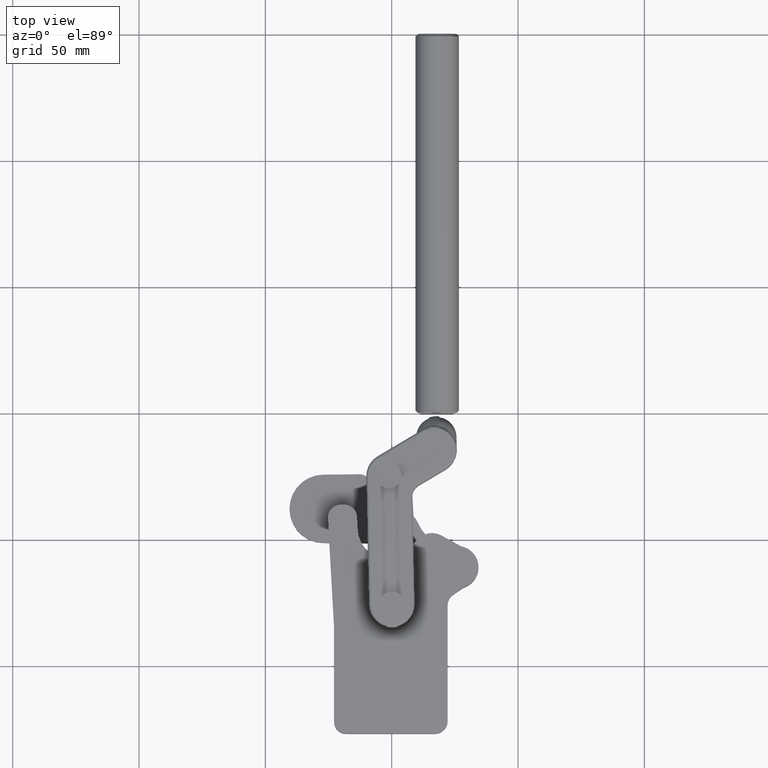
[diagram: clean part render]
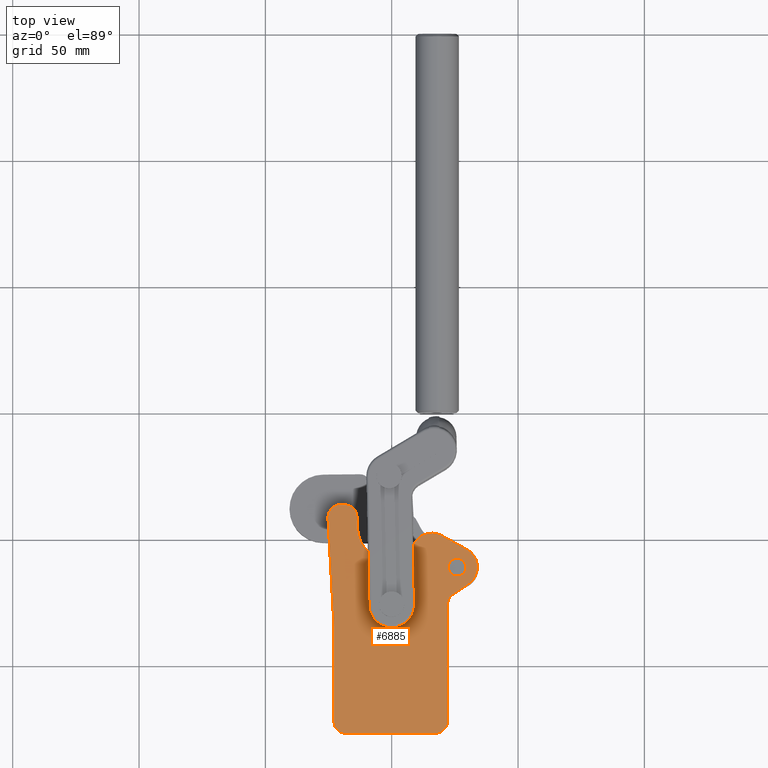
[diagram: same view with one face highlighted and labeled with its STEP entity id]
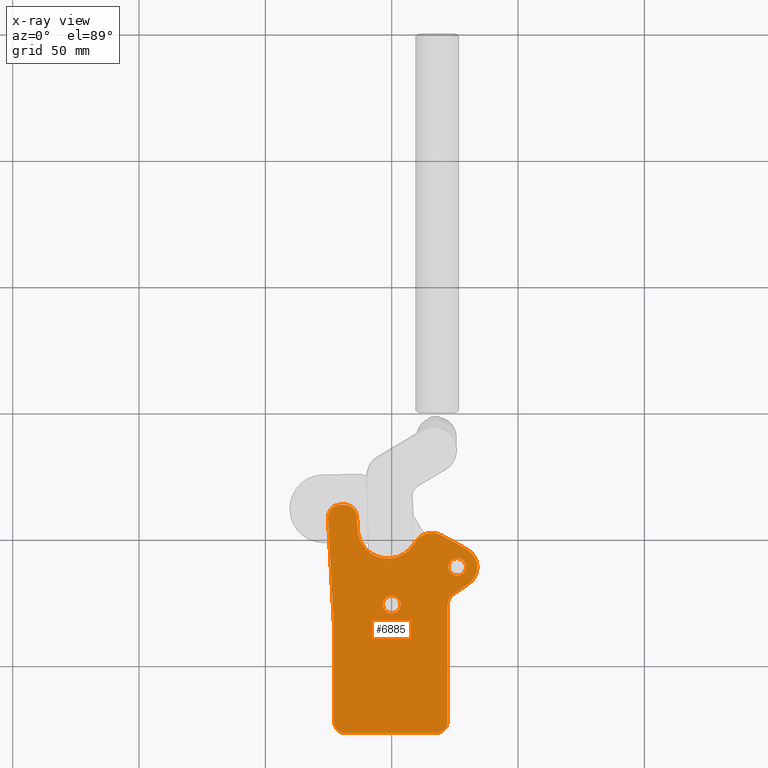
[diagram: x-ray of the same camera — body ghosted, the highlighted face saturated]
A machine part, top view. The second image highlights one B-rep face of the part: STEP entity #6885.
The next image is the same camera in x-ray: the body ghosted, the highlighted face saturated — about 0% of this face is hidden behind the body in this view.
In plain terms, the highlighted planar face has unit normal (0, 0, 1).
Its self-contained STEP definition (entity closure, byte-faithful):
#79 = EDGE_CURVE ( 'NONE', #3396, #1000, #2677, .T. ) ;
#95 = EDGE_CURVE ( 'NONE', #9282, #4445, #7255, .T. ) ;
#152 = ORIENTED_EDGE ( 'NONE', *, *, #8721, .T. ) ;
#173 = ORIENTED_EDGE ( 'NONE', *, *, #5014, .T. ) ;
#274 = VECTOR ( 'NONE', #10805, 1000.000000000000200 ) ;
#325 = AXIS2_PLACEMENT_3D ( 'NONE', #2663, #9889, #579 ) ;
#460 = CARTESIAN_POINT ( 'NONE',  ( 29.38500000000001600, 65.90000000000006300, 8.999999999999998200 ) ) ;
#516 = VECTOR ( 'NONE', #5171, 1000.000000000000200 ) ;
#579 = DIRECTION ( 'NONE',  ( 1.000000000000000000, 0.0000000000000000000, 0.0000000000000000000 ) ) ;
#592 = AXIS2_PLACEMENT_3D ( 'NONE', #6199, #6190, #6175 ) ;
#603 = CARTESIAN_POINT ( 'NONE',  ( -13.49999999999998900, 81.26000000000003400, 9.000000000000000000 ) ) ;
#710 = AXIS2_PLACEMENT_3D ( 'NONE', #8775, #6600, #3743 ) ;
#713 = CARTESIAN_POINT ( 'NONE',  ( -20.23095044539636300, 90.60000000000003700, 9.000000000000000000 ) ) ;
#833 = EDGE_LOOP ( 'NONE', ( #2223, #2423, #173, #6231, #10468, #5021, #4016, #2242, #8563, #9367, #9021, #8835, #4456, #152, #3994, #10645, #5891, #9943 ) ) ;
#959 = VERTEX_POINT ( 'NONE', #460 ) ;
#1000 = VERTEX_POINT ( 'NONE', #6686 ) ;
#1018 = AXIS2_PLACEMENT_3D ( 'NONE', #4094, #4110, #6214 ) ;
#1032 = VERTEX_POINT ( 'NONE', #10092 ) ;
#1179 = VECTOR ( 'NONE', #1262, 1000.000000000000100 ) ;
#1227 = CARTESIAN_POINT ( 'NONE',  ( 17.00000000000001400, 0.1000000000000445000, 9.000000000000000000 ) ) ;
#1262 = DIRECTION ( 'NONE',  ( 0.8235627541218609700, 0.5672251669515511200, 0.0000000000000000000 ) ) ;
#1272 = CARTESIAN_POINT ( 'NONE',  ( 24.16387416524220900, 54.99035866240750900, 9.000000000000000000 ) ) ;
#1339 = DIRECTION ( 'NONE',  ( 1.000000000000000000, 0.0000000000000000000, 0.0000000000000000000 ) ) ;
#1423 = CARTESIAN_POINT ( 'NONE',  ( -22.86000000000004600, 85.60000000000006500, 9.000000000000000000 ) ) ;
#1428 = VECTOR ( 'NONE', #5316, 1000.000000000000000 ) ;
#1637 = VECTOR ( 'NONE', #9558, 1000.000000000000100 ) ;
#1728 = CARTESIAN_POINT ( 'NONE',  ( 8.939999999999987100, 75.34337934290196900, 9.000000000000000000 ) ) ;
#1737 = LINE ( 'NONE', #9121, #1428 ) ;
#1789 = ORIENTED_EDGE ( 'NONE', *, *, #9475, .T. ) ;
#1808 = CIRCLE ( 'NONE', #8662, 4.765655449276774600 ) ;
#1809 = AXIS2_PLACEMENT_3D ( 'NONE', #2001, #6826, #4425 ) ;
#1856 = CARTESIAN_POINT ( 'NONE',  ( 22.13999999999999000, 5.000000000000018700, 9.000000000000000000 ) ) ;
#1901 = CARTESIAN_POINT ( 'NONE',  ( 1.387778780781445700E-014, 51.10000000000005800, 9.000000000000000000 ) ) ;
#1945 = EDGE_CURVE ( 'NONE', #6807, #4650, #10665, .T. ) ;
#1973 = CARTESIAN_POINT ( 'NONE',  ( -22.86000000000004200, 42.90000000000002000, 9.000000000000000000 ) ) ;
#2001 = CARTESIAN_POINT ( 'NONE',  ( -20.23095044539636300, 85.60000000000006500, 9.000000000000000000 ) ) ;
#2008 = DIRECTION ( 'NONE',  ( 0.0000000000000000000, 0.0000000000000000000, 1.000000000000000000 ) ) ;
#2223 = ORIENTED_EDGE ( 'NONE', *, *, #1945, .F. ) ;
#2242 = ORIENTED_EDGE ( 'NONE', *, *, #9263, .T. ) ;
#2411 = VERTEX_POINT ( 'NONE', #5706 ) ;
#2423 = ORIENTED_EDGE ( 'NONE', *, *, #3773, .T. ) ;
#2540 = DIRECTION ( 'NONE',  ( 0.0000000000000000000, 0.0000000000000000000, 1.000000000000000000 ) ) ;
#2552 = DIRECTION ( 'NONE',  ( 1.000000000000000000, 0.0000000000000000000, 0.0000000000000000000 ) ) ;
#2650 = DIRECTION ( 'NONE',  ( 0.0000000000000000000, 0.0000000000000000000, 1.000000000000000000 ) ) ;
#2663 = CARTESIAN_POINT ( 'NONE',  ( -18.09626604559855100, 4.864683064977830500, 9.000000000000001800 ) ) ;
#2677 = CIRCLE ( 'NONE', #6034, 4.999999999999945800 ) ;
#2700 = CIRCLE ( 'NONE', #5923, 4.692326303554286100 ) ;
#2753 = LINE ( 'NONE', #8469, #7334 ) ;
#2829 = CARTESIAN_POINT ( 'NONE',  ( 15.90000000000002200, 71.39896557150324000, 9.000000000000000000 ) ) ;
#2947 = CARTESIAN_POINT ( 'NONE',  ( -20.23095044539636300, 85.60000000000006500, 9.000000000000000000 ) ) ;
#2958 = CARTESIAN_POINT ( 'NONE',  ( 17.10181000258580000, 5.139080936063064300, 9.000000000000000000 ) ) ;
#3076 = DIRECTION ( 'NONE',  ( 1.000000000000000000, 0.0000000000000000000, 0.0000000000000000000 ) ) ;
#3129 = DIRECTION ( 'NONE',  ( -1.000000000000000000, 0.0000000000000000000, 0.0000000000000000000 ) ) ;
#3146 = EDGE_CURVE ( 'NONE', #1000, #9833, #1737, .T. ) ;
#3156 = CARTESIAN_POINT ( 'NONE',  ( 29.75479325831242200, 72.91003344754287200, 9.000000000000000000 ) ) ;
#3396 = VERTEX_POINT ( 'NONE', #3779 ) ;
#3477 = EDGE_LOOP ( 'NONE', ( #5573, #8366 ) ) ;
#3536 = AXIS2_PLACEMENT_3D ( 'NONE', #2958, #6446, #10194 ) ;
#3662 = CIRCLE ( 'NONE', #592, 4.999999999999971600 ) ;
#3743 = DIRECTION ( 'NONE',  ( 1.000000000000000000, 0.0000000000000000000, 0.0000000000000000000 ) ) ;
#3770 = CIRCLE ( 'NONE', #5243, 3.485000000000002100 ) ;
#3773 = EDGE_CURVE ( 'NONE', #6807, #6285, #9565, .T. ) ;
#3779 = CARTESIAN_POINT ( 'NONE',  ( -13.74116381830507200, 85.86167978121474700, 9.000000000000000000 ) ) ;
#3927 = LINE ( 'NONE', #1272, #1179 ) ;
#3994 = ORIENTED_EDGE ( 'NONE', *, *, #9089, .F. ) ;
#4016 = ORIENTED_EDGE ( 'NONE', *, *, #95, .T. ) ;
#4040 = CARTESIAN_POINT ( 'NONE',  ( 29.75479325831242200, 72.91003344754287200, 9.000000000000000000 ) ) ;
#4094 = CARTESIAN_POINT ( 'NONE',  ( 1.387778780781445700E-014, 51.10000000000005800, 9.000000000000000000 ) ) ;
#4110 = DIRECTION ( 'NONE',  ( 0.0000000000000000000, 0.0000000000000000000, 1.000000000000000000 ) ) ;
#4154 = CIRCLE ( 'NONE', #8503, 3.485000000000000300 ) ;
#4237 = EDGE_CURVE ( 'NONE', #7169, #3396, #5181, .T. ) ;
#4321 = CARTESIAN_POINT ( 'NONE',  ( 22.41500000000001000, 65.90000000000006300, 8.999999999999998200 ) ) ;
#4425 = DIRECTION ( 'NONE',  ( 1.000000000000000000, 0.0000000000000000000, -0.0000000000000000000 ) ) ;
#4445 = VERTEX_POINT ( 'NONE', #6954 ) ;
#4456 = ORIENTED_EDGE ( 'NONE', *, *, #7431, .T. ) ;
#4484 = CARTESIAN_POINT ( 'NONE',  ( 22.14000000000001800, 50.87254489179820600, 9.000000000000000000 ) ) ;
#4625 = CIRCLE ( 'NONE', #710, 11.99999999999997300 ) ;
#4650 = VERTEX_POINT ( 'NONE', #7861 ) ;
#4770 = DIRECTION ( 'NONE',  ( -1.000000000000000000, 0.0000000000000000000, 0.0000000000000000000 ) ) ;
#4784 = DIRECTION ( 'NONE',  ( -0.0000000000000000000, -0.0000000000000000000, -1.000000000000000000 ) ) ;
#4814 = CARTESIAN_POINT ( 'NONE',  ( 26.82547973616695800, 51.12593348861386000, 9.000000000000000000 ) ) ;
#4845 = CIRCLE ( 'NONE', #4870, 8.000000000000028400 ) ;
#4870 = AXIS2_PLACEMENT_3D ( 'NONE', #2829, #2540, #2552 ) ;
#4976 = DIRECTION ( 'NONE',  ( 1.000000000000000000, 0.0000000000000000000, 0.0000000000000000000 ) ) ;
#5014 = EDGE_CURVE ( 'NONE', #6285, #5593, #2753, .T. ) ;
#5021 = ORIENTED_EDGE ( 'NONE', *, *, #10841, .T. ) ;
#5121 = CARTESIAN_POINT ( 'NONE',  ( -25.23095044539633500, 85.60000000000006500, 9.000000000000000000 ) ) ;
#5160 = EDGE_CURVE ( 'NONE', #9853, #8700, #6195, .T. ) ;
#5171 = DIRECTION ( 'NONE',  ( -0.8762541809428534600, 0.4818491572890514200, 0.0000000000000000000 ) ) ;
#5181 = LINE ( 'NONE', #6002, #274 ) ;
#5243 = AXIS2_PLACEMENT_3D ( 'NONE', #6187, #6080, #6067 ) ;
#5278 = CARTESIAN_POINT ( 'NONE',  ( -18.73431149207788900, 85.60000000000006500, 9.000000000000000000 ) ) ;
#5289 = AXIS2_PLACEMENT_3D ( 'NONE', #7926, #8546, #3076 ) ;
#5316 = DIRECTION ( 'NONE',  ( -1.000000000000000000, 4.636317856435539100E-015, 0.0000000000000000000 ) ) ;
#5432 = VERTEX_POINT ( 'NONE', #1728 ) ;
#5521 = CARTESIAN_POINT ( 'NONE',  ( -20.23095044539636300, 0.1000000000000375600, 9.000000000000000000 ) ) ;
#5573 = ORIENTED_EDGE ( 'NONE', *, *, #6443, .F. ) ;
#5580 = EDGE_CURVE ( 'NONE', #5432, #7169, #4625, .T. ) ;
#5593 = VERTEX_POINT ( 'NONE', #4484 ) ;
#5706 = CARTESIAN_POINT ( 'NONE',  ( 24.16387416524220900, 54.99035866240750900, 9.000000000000000000 ) ) ;
#5801 = DIRECTION ( 'NONE',  ( 1.000000000000000000, 0.0000000000000000000, 0.0000000000000000000 ) ) ;
#5891 = ORIENTED_EDGE ( 'NONE', *, *, #5160, .F. ) ;
#5923 = AXIS2_PLACEMENT_3D ( 'NONE', #4814, #4784, #4770 ) ;
#6002 = CARTESIAN_POINT ( 'NONE',  ( -13.74116381830509500, 85.86167978121474700, 9.000000000000000000 ) ) ;
#6034 = AXIS2_PLACEMENT_3D ( 'NONE', #5278, #2008, #4976 ) ;
#6067 = DIRECTION ( 'NONE',  ( 1.000000000000000000, 0.0000000000000000000, 0.0000000000000000000 ) ) ;
#6071 = CARTESIAN_POINT ( 'NONE',  ( 3.485000000000014100, 51.10000000000005800, 9.000000000000000000 ) ) ;
#6080 = DIRECTION ( 'NONE',  ( -0.0000000000000000000, -0.0000000000000000000, -1.000000000000000000 ) ) ;
#6175 = DIRECTION ( 'NONE',  ( 1.000000000000000000, 0.0000000000000000000, 0.0000000000000000000 ) ) ;
#6187 = CARTESIAN_POINT ( 'NONE',  ( 25.90000000000001300, 65.90000000000006300, 8.999999999999998200 ) ) ;
#6190 = DIRECTION ( 'NONE',  ( 0.0000000000000000000, 0.0000000000000000000, 1.000000000000000000 ) ) ;
#6195 = CIRCLE ( 'NONE', #325, 4.765655449276774600 ) ;
#6199 = CARTESIAN_POINT ( 'NONE',  ( -20.23095044539636300, 85.60000000000006500, 9.000000000000000000 ) ) ;
#6214 = DIRECTION ( 'NONE',  ( 1.000000000000000000, 0.0000000000000000000, 0.0000000000000000000 ) ) ;
#6231 = ORIENTED_EDGE ( 'NONE', *, *, #10459, .T. ) ;
#6285 = VERTEX_POINT ( 'NONE', #1856 ) ;
#6311 = LINE ( 'NONE', #1423, #10616 ) ;
#6443 = EDGE_CURVE ( 'NONE', #10976, #9058, #4154, .T. ) ;
#6446 = DIRECTION ( 'NONE',  ( 0.0000000000000000000, 0.0000000000000000000, 1.000000000000000000 ) ) ;
#6600 = DIRECTION ( 'NONE',  ( -0.0000000000000000000, -0.0000000000000000000, -1.000000000000000000 ) ) ;
#6686 = CARTESIAN_POINT ( 'NONE',  ( -18.73431149207793600, 90.60000000000002300, 9.000000000000000000 ) ) ;
#6787 = DIRECTION ( 'NONE',  ( 7.563231907314425800E-017, 1.000000000000000000, 0.0000000000000000000 ) ) ;
#6807 = VERTEX_POINT ( 'NONE', #1227 ) ;
#6826 = DIRECTION ( 'NONE',  ( 0.0000000000000000000, 0.0000000000000000000, 1.000000000000000000 ) ) ;
#6885 = ADVANCED_FACE ( 'NONE', ( #8070, #9816, #10085 ), #7710, .T. ) ;
#6954 = CARTESIAN_POINT ( 'NONE',  ( 19.75479325831244600, 78.40899901904610700, 9.000000000000000000 ) ) ;
#6977 = VERTEX_POINT ( 'NONE', #1973 ) ;
#7101 = CARTESIAN_POINT ( 'NONE',  ( -22.86000000000004600, 5.000000000000053300, 9.000000000000000000 ) ) ;
#7169 = VERTEX_POINT ( 'NONE', #603 ) ;
#7235 = EDGE_CURVE ( 'NONE', #959, #7425, #8844, .T. ) ;
#7255 = LINE ( 'NONE', #4040, #516 ) ;
#7334 = VECTOR ( 'NONE', #6787, 1000.000000000000000 ) ;
#7388 = DIRECTION ( 'NONE',  ( 1.000000000000000000, 0.0000000000000000000, 0.0000000000000000000 ) ) ;
#7398 = DIRECTION ( 'NONE',  ( -0.0000000000000000000, -0.0000000000000000000, -1.000000000000000000 ) ) ;
#7407 = CARTESIAN_POINT ( 'NONE',  ( -18.09626604559855100, 4.864683064977830500, 9.000000000000001800 ) ) ;
#7425 = VERTEX_POINT ( 'NONE', #4321 ) ;
#7431 = EDGE_CURVE ( 'NONE', #9833, #11015, #11294, .T. ) ;
#7710 = PLANE ( 'NONE',  #1809 ) ;
#7861 = CARTESIAN_POINT ( 'NONE',  ( -18.00000000000001400, 0.1000000000000306200, 9.000000000000001800 ) ) ;
#7926 = CARTESIAN_POINT ( 'NONE',  ( 25.90000000000001300, 65.90000000000006300, 8.999999999999998200 ) ) ;
#8070 = FACE_BOUND ( 'NONE', #3477, .T. ) ;
#8300 = DIRECTION ( 'NONE',  ( 1.000000000000000000, 0.0000000000000000000, 0.0000000000000000000 ) ) ;
#8318 = EDGE_CURVE ( 'NONE', #9058, #10976, #8689, .T. ) ;
#8366 = ORIENTED_EDGE ( 'NONE', *, *, #8318, .F. ) ;
#8379 = VECTOR ( 'NONE', #3129, 1000.000000000000000 ) ;
#8447 = DIRECTION ( 'NONE',  ( 0.0000000000000000000, 0.0000000000000000000, 1.000000000000000000 ) ) ;
#8469 = CARTESIAN_POINT ( 'NONE',  ( 22.14000000000001500, 5.000000000000018700, 9.000000000000000000 ) ) ;
#8503 = AXIS2_PLACEMENT_3D ( 'NONE', #1901, #10461, #5801 ) ;
#8534 = VERTEX_POINT ( 'NONE', #9411 ) ;
#8546 = DIRECTION ( 'NONE',  ( -0.0000000000000000000, -0.0000000000000000000, -1.000000000000000000 ) ) ;
#8563 = ORIENTED_EDGE ( 'NONE', *, *, #5580, .T. ) ;
#8576 = AXIS2_PLACEMENT_3D ( 'NONE', #2947, #2650, #1339 ) ;
#8629 = EDGE_CURVE ( 'NONE', #4650, #9853, #1808, .T. ) ;
#8662 = AXIS2_PLACEMENT_3D ( 'NONE', #7407, #7398, #7388 ) ;
#8666 = CARTESIAN_POINT ( 'NONE',  ( 25.90000000000000600, 65.90000000000004800, 9.000000000000000000 ) ) ;
#8689 = CIRCLE ( 'NONE', #1018, 3.485000000000000300 ) ;
#8700 = VERTEX_POINT ( 'NONE', #7101 ) ;
#8721 = EDGE_CURVE ( 'NONE', #11015, #1032, #3662, .T. ) ;
#8775 = CARTESIAN_POINT ( 'NONE',  ( -1.500000000000006700, 81.26000000000003400, 9.000000000000000000 ) ) ;
#8782 = DIRECTION ( 'NONE',  ( 0.0000000000000000000, 1.000000000000000000, 0.0000000000000000000 ) ) ;
#8835 = ORIENTED_EDGE ( 'NONE', *, *, #3146, .T. ) ;
#8844 = CIRCLE ( 'NONE', #5289, 3.485000000000002100 ) ;
#9021 = ORIENTED_EDGE ( 'NONE', *, *, #79, .T. ) ;
#9058 = VERTEX_POINT ( 'NONE', #10550 ) ;
#9089 = EDGE_CURVE ( 'NONE', #6977, #1032, #11378, .T. ) ;
#9121 = CARTESIAN_POINT ( 'NONE',  ( -18.73431149207793600, 90.60000000000002300, 9.000000000000000000 ) ) ;
#9263 = EDGE_CURVE ( 'NONE', #4445, #5432, #4845, .T. ) ;
#9282 = VERTEX_POINT ( 'NONE', #3156 ) ;
#9316 = EDGE_CURVE ( 'NONE', #2411, #8534, #3927, .T. ) ;
#9367 = ORIENTED_EDGE ( 'NONE', *, *, #4237, .T. ) ;
#9411 = CARTESIAN_POINT ( 'NONE',  ( 30.43780133561242700, 59.31149796702514700, 9.000000000000000000 ) ) ;
#9475 = EDGE_CURVE ( 'NONE', #7425, #959, #3770, .T. ) ;
#9558 = DIRECTION ( 'NONE',  ( -0.05562044978973303100, 0.9984519846067649900, 0.0000000000000000000 ) ) ;
#9565 = CIRCLE ( 'NONE', #3536, 5.040109319927548600 ) ;
#9566 = AXIS2_PLACEMENT_3D ( 'NONE', #8666, #8447, #8300 ) ;
#9816 = FACE_BOUND ( 'NONE', #10784, .T. ) ;
#9833 = VERTEX_POINT ( 'NONE', #713 ) ;
#9853 = VERTEX_POINT ( 'NONE', #10798 ) ;
#9889 = DIRECTION ( 'NONE',  ( -0.0000000000000000000, -0.0000000000000000000, -1.000000000000000000 ) ) ;
#9901 = EDGE_CURVE ( 'NONE', #8700, #6977, #6311, .T. ) ;
#9943 = ORIENTED_EDGE ( 'NONE', *, *, #8629, .F. ) ;
#9981 = CARTESIAN_POINT ( 'NONE',  ( -25.22318336174694800, 85.32189925550417800, 9.000000000000000000 ) ) ;
#10085 = FACE_OUTER_BOUND ( 'NONE', #833, .T. ) ;
#10092 = CARTESIAN_POINT ( 'NONE',  ( -25.22409811916919900, 85.33832021878534100, 9.000000000000000000 ) ) ;
#10194 = DIRECTION ( 'NONE',  ( -1.000000000000000000, 0.0000000000000000000, 0.0000000000000000000 ) ) ;
#10459 = EDGE_CURVE ( 'NONE', #5593, #2411, #2700, .T. ) ;
#10461 = DIRECTION ( 'NONE',  ( 0.0000000000000000000, 0.0000000000000000000, 1.000000000000000000 ) ) ;
#10468 = ORIENTED_EDGE ( 'NONE', *, *, #9316, .T. ) ;
#10550 = CARTESIAN_POINT ( 'NONE',  ( -3.484999999999986600, 51.10000000000005800, 9.000000000000000000 ) ) ;
#10616 = VECTOR ( 'NONE', #8782, 1000.000000000000000 ) ;
#10645 = ORIENTED_EDGE ( 'NONE', *, *, #9901, .F. ) ;
#10665 = LINE ( 'NONE', #5521, #8379 ) ;
#10784 = EDGE_LOOP ( 'NONE', ( #11418, #1789 ) ) ;
#10798 = CARTESIAN_POINT ( 'NONE',  ( -22.86192149487532200, 4.864683064977830500, 9.000000000000001800 ) ) ;
#10805 = DIRECTION ( 'NONE',  ( -0.05233595624293762400, 0.9986295347545741700, -0.0000000000000000000 ) ) ;
#10841 = EDGE_CURVE ( 'NONE', #8534, #9282, #11534, .T. ) ;
#10976 = VERTEX_POINT ( 'NONE', #6071 ) ;
#11015 = VERTEX_POINT ( 'NONE', #5121 ) ;
#11294 = CIRCLE ( 'NONE', #8576, 4.999999999999971600 ) ;
#11378 = LINE ( 'NONE', #9981, #1637 ) ;
#11418 = ORIENTED_EDGE ( 'NONE', *, *, #7235, .T. ) ;
#11534 = CIRCLE ( 'NONE', #9566, 8.000000000000014200 ) ;